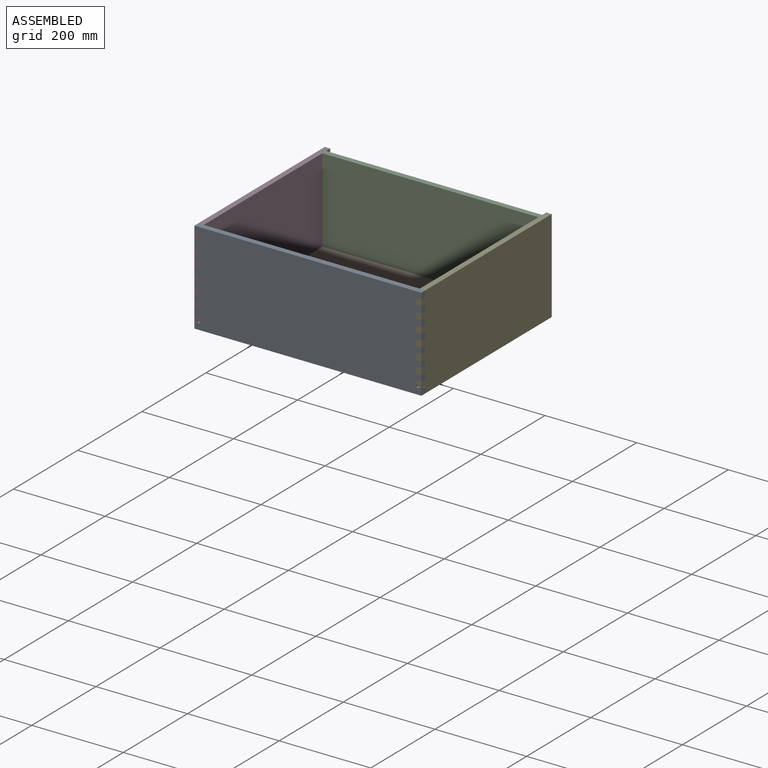
[diagram: assembled view]
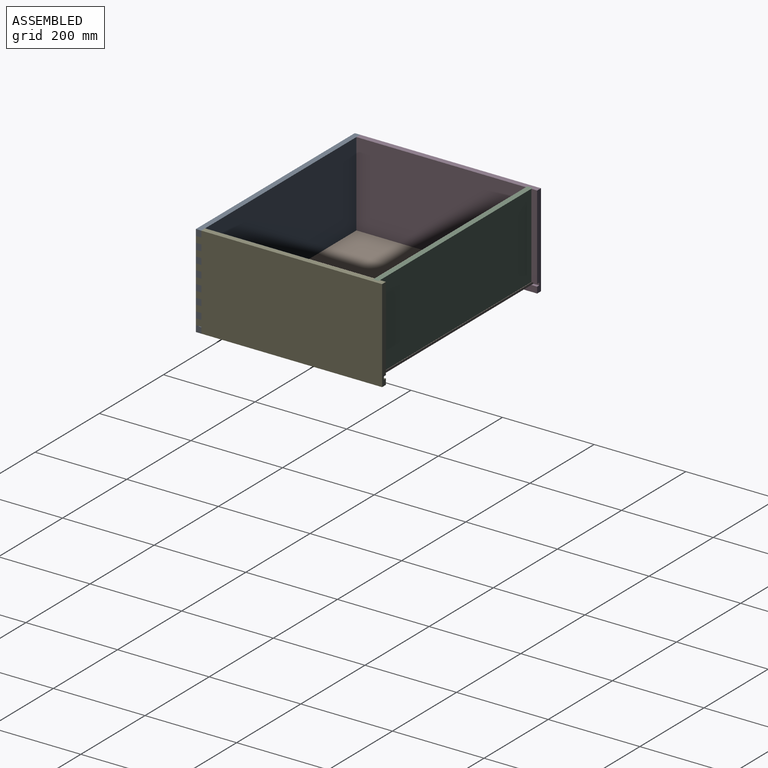
[diagram: assembled view, second angle]
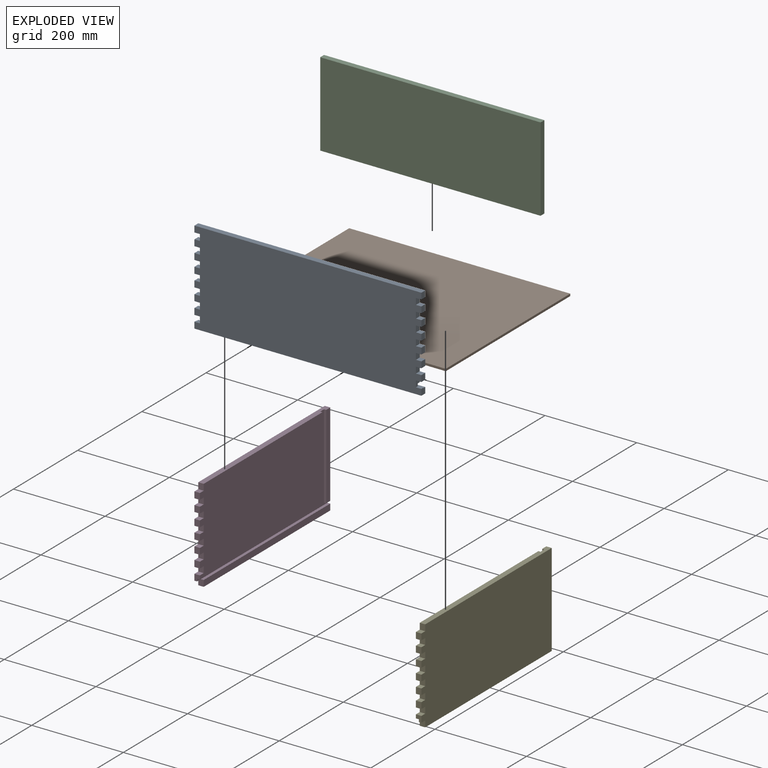
[diagram: exploded view]
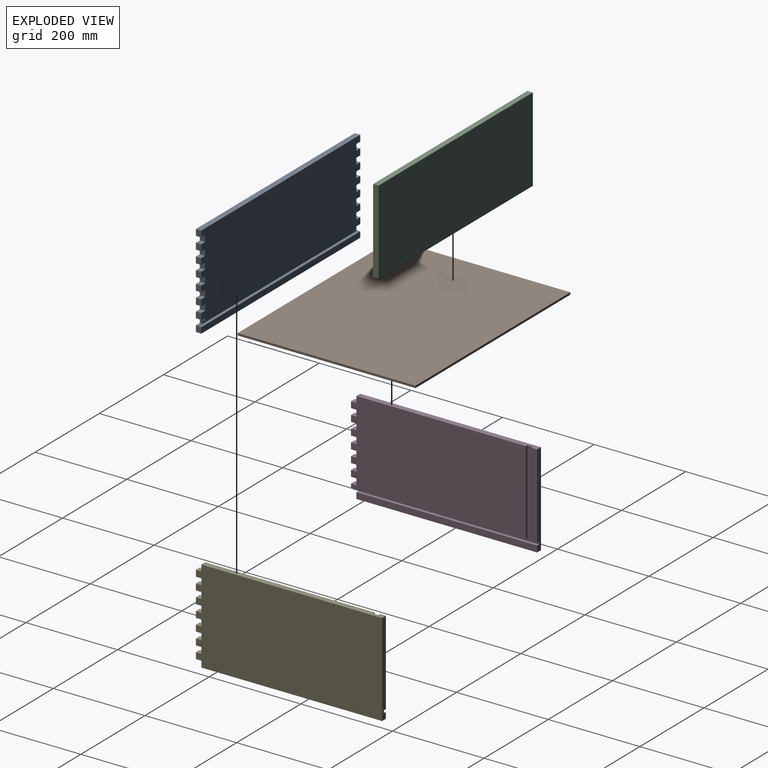
[diagram: exploded view, second angle]
ASSEMBLY  parts=5 mates=12
PART A: 66 faces, bbox 495.3x11.9x203.2 mm
  f0: plane 13.55x11.91mm, normal (1,0,0), area 155.9mm2, adj f3,f10,f21,f22,f63,f65
  f1: plane 495.3x184.15mm, normal (0,1,0), area 89082.5mm2, adj f4,f5,f6,f7,f8,f9,f11,f12
  f2: plane 11.91x5.56mm, normal (0,0,1), area 66.2mm2, adj f17,f22,f24,f65
  f3: plane 11.91x5.56mm, normal (0,0,1), area 66.2mm2, adj f0,f22,f44,f65
  f4: plane 13.55x11.91mm, normal (1,0,0), area 161.3mm2, adj f1,f22,f57,f61
  f5: plane 13.55x11.91mm, normal (1,0,0), area 161.3mm2, adj f1,f22,f54,f58
  f6: plane 13.55x11.91mm, normal (1,0,0), area 161.3mm2, adj f1,f22,f51,f55
  f7: plane 13.55x11.91mm, normal (1,0,0), area 161.3mm2, adj f1,f22,f48,f52
  f8: plane 13.55x11.91mm, normal (1,0,0), area 161.3mm2, adj f1,f22,f45,f49
  f9: plane 13.55x11.91mm, normal (1,0,0), area 161.3mm2, adj f1,f22,f43,f46
  f10: plane 495.3x12.7mm, normal (0,1,0), area 6290.3mm2, adj f0,f17,f21,f63
  f11: plane 13.55x11.91mm, normal (-1,0,0), area 161.3mm2, adj f1,f22,f37,f41
  f12: plane 13.55x11.91mm, normal (-1,0,0), area 161.3mm2, adj f1,f22,f34,f38
  f13: plane 13.55x11.91mm, normal (-1,0,0), area 161.3mm2, adj f1,f22,f31,f35
  f14: plane 13.55x11.91mm, normal (-1,0,0), area 161.3mm2, adj f1,f22,f28,f32
  f15: plane 13.55x11.91mm, normal (-1,0,0), area 161.3mm2, adj f1,f22,f25,f29
  f16: plane 13.55x11.91mm, normal (-1,0,0), area 161.3mm2, adj f1,f22,f23,f26
  f17: plane 13.55x11.91mm, normal (-1,0,0), area 155.9mm2, adj f2,f10,f21,f22,f63,f65
  f18: plane 13.55x11.91mm, normal (-1,0,0), area 161.3mm2, adj f1,f19,f22,f40
  f19: plane 495.3x11.91mm, normal (0,0,1), area 5897.2mm2, adj f1,f18,f20,f22
  f20: plane 13.55x11.91mm, normal (1,0,0), area 161.3mm2, adj f1,f19,f22,f60
  f21: plane 495.3x11.91mm, normal (0,0,-1), area 5897.2mm2, adj f0,f10,f17,f22
  f22: plane 495.3x203.2mm, normal (0,-1,0), area 98386.9mm2, adj f0,f2,f3,f4,f5,f6,f7,f8
  f23: plane 11.91x11.91mm, normal (0,0,-1), area 141.8mm2, adj f1,f16,f22,f24
  f24: plane 13.55x11.91mm, normal (-1,0,0), area 126.3mm2, adj f1,f2,f22,f23,f64,f65
  f25: plane 11.91x11.91mm, normal (0,0,-1), area 141.8mm2, adj f1,f15,f22,f27
  f26: plane 11.91x11.91mm, normal (0,0,1), area 141.8mm2, adj f1,f16,f22,f27
  f27: plane 13.55x11.91mm, normal (-1,0,0), area 161.3mm2, adj f1,f22,f25,f26
  f28: plane 11.91x11.91mm, normal (0,0,-1), area 141.8mm2, adj f1,f14,f22,f30
  f29: plane 11.91x11.91mm, normal (0,0,1), area 141.8mm2, adj f1,f15,f22,f30
  f30: plane 13.55x11.91mm, normal (-1,0,0), area 161.3mm2, adj f1,f22,f28,f29
  f31: plane 11.91x11.91mm, normal (0,0,-1), area 141.8mm2, adj f1,f13,f22,f33
  f32: plane 11.91x11.91mm, normal (0,0,1), area 141.8mm2, adj f1,f14,f22,f33
  f33: plane 13.55x11.91mm, normal (-1,0,0), area 161.3mm2, adj f1,f22,f31,f32
  f34: plane 11.91x11.91mm, normal (0,0,-1), area 141.8mm2, adj f1,f12,f22,f36
  f35: plane 11.91x11.91mm, normal (0,0,1), area 141.8mm2, adj f1,f13,f22,f36
  f36: plane 13.55x11.91mm, normal (-1,0,0), area 161.3mm2, adj f1,f22,f34,f35
  f37: plane 11.91x11.91mm, normal (0,0,-1), area 141.8mm2, adj f1,f11,f22,f39
  f38: plane 11.91x11.91mm, normal (0,0,1), area 141.8mm2, adj f1,f12,f22,f39
  f39: plane 13.55x11.91mm, normal (-1,0,0), area 161.3mm2, adj f1,f22,f37,f38
  f40: plane 11.91x11.91mm, normal (0,0,-1), area 141.8mm2, adj f1,f18,f22,f42
  f41: plane 11.91x11.91mm, normal (0,0,1), area 141.8mm2, adj f1,f11,f22,f42
  f42: plane 13.55x11.91mm, normal (-1,0,0), area 161.3mm2, adj f1,f22,f40,f41
  f43: plane 11.91x11.91mm, normal (0,0,-1), area 141.8mm2, adj f1,f9,f22,f44
  f44: plane 13.55x11.91mm, normal (1,0,0), area 126.3mm2, adj f1,f3,f22,f43,f64,f65
  f45: plane 11.91x11.91mm, normal (0,0,-1), area 141.8mm2, adj f1,f8,f22,f47
  f46: plane 11.91x11.91mm, normal (0,0,1), area 141.8mm2, adj f1,f9,f22,f47
  f47: plane 13.55x11.91mm, normal (1,0,0), area 161.3mm2, adj f1,f22,f45,f46
  f48: plane 11.91x11.91mm, normal (0,0,-1), area 141.8mm2, adj f1,f7,f22,f50
  f49: plane 11.91x11.91mm, normal (0,0,1), area 141.8mm2, adj f1,f8,f22,f50
  f50: plane 13.55x11.91mm, normal (1,0,0), area 161.3mm2, adj f1,f22,f48,f49
  f51: plane 11.91x11.91mm, normal (0,0,-1), area 141.8mm2, adj f1,f6,f22,f53
  f52: plane 11.91x11.91mm, normal (0,0,1), area 141.8mm2, adj f1,f7,f22,f53
  f53: plane 13.55x11.91mm, normal (1,0,0), area 161.3mm2, adj f1,f22,f51,f52
  f54: plane 11.91x11.91mm, normal (0,0,-1), area 141.8mm2, adj f1,f5,f22,f56
  f55: plane 11.91x11.91mm, normal (0,0,1), area 141.8mm2, adj f1,f6,f22,f56
  f56: plane 13.55x11.91mm, normal (1,0,0), area 161.3mm2, adj f1,f22,f54,f55
  f57: plane 11.91x11.91mm, normal (0,0,-1), area 141.8mm2, adj f1,f4,f22,f59
  f58: plane 11.91x11.91mm, normal (0,0,1), area 141.8mm2, adj f1,f5,f22,f59
  f59: plane 13.55x11.91mm, normal (1,0,0), area 161.3mm2, adj f1,f22,f57,f58
  f60: plane 11.91x11.91mm, normal (0,0,-1), area 141.8mm2, adj f1,f20,f22,f62
  f61: plane 11.91x11.91mm, normal (0,0,1), area 141.8mm2, adj f1,f4,f22,f62
  f62: plane 13.55x11.91mm, normal (1,0,0), area 161.3mm2, adj f1,f22,f60,f61
  f63: plane 495.3x6.35mm, normal (0,0,1), area 3145.2mm2, adj f0,f10,f17,f65
  f64: plane 471.49x6.35mm, normal (0,0,-1), area 2993.9mm2, adj f1,f24,f44,f65
  f65: plane 495.3x6.35mm, normal (0,1,0), area 3014.1mm2, adj f0,f2,f3,f17,f24,f44,f63,f64
PART B: 6 faces, bbox 482.6x388.1x4.8 mm
  f0: plane 482.6x4.76mm, normal (0,-1,0), area 2298.4mm2, adj f1,f3,f4,f5
  f1: plane 388.14x4.76mm, normal (-1,0,0), area 1848.5mm2, adj f0,f2,f3,f4
  f2: plane 482.6x4.76mm, normal (0,1,0), area 2298.4mm2, adj f1,f3,f4,f5
  f3: plane 482.6x388.14mm, normal (0,0,-1), area 187318.2mm2, adj f0,f1,f2,f5
  f4: plane 482.6x388.14mm, normal (0,0,1), area 187318.2mm2, adj f0,f1,f2,f5
  f5: plane 388.14x4.76mm, normal (1,0,0), area 1848.5mm2, adj f0,f2,f3,f4
PART C: 6 faces, bbox 481x11.9x184.2 mm
  f0: plane 481.01x11.91mm, normal (0,0,-1), area 5727.1mm2, adj f1,f2,f3,f4
  f1: plane 481.01x184.15mm, normal (0,1,0), area 88578.5mm2, adj f0,f2,f4,f5
  f2: plane 184.15x11.91mm, normal (-1,0,0), area 2192.5mm2, adj f0,f1,f3,f5
  f3: plane 481.01x184.15mm, normal (0,-1,0), area 88578.5mm2, adj f0,f2,f4,f5
  f4: plane 184.15x11.91mm, normal (1,0,0), area 2192.5mm2, adj f0,f1,f3,f5
  f5: plane 481.01x11.91mm, normal (0,0,1), area 5727.1mm2, adj f1,f2,f3,f4
PART D: 42 faces, bbox 11.9x406.4x203.2 mm
  f0: plane 381.79x184.15mm, normal (1,0,0), area 69178.3mm2, adj f1,f2,f5,f6,f7,f8,f9,f10
  f1: plane 394.49x11.91mm, normal (0,0,1), area 4640.2mm2, adj f0,f3,f4,f13,f35,f39,f40,f41
  f2: plane 406.4x6.35mm, normal (0,0,-1), area 2523.9mm2, adj f0,f3,f4,f11,f38,f39,f40,f41
  f3: plane 184.15x12.7mm, normal (1,0,0), area 2338.7mm2, adj f1,f2,f4,f39
  f4: plane 203.2x11.91mm, normal (0,1,0), area 2384.4mm2, adj f1,f2,f3,f12,f13,f14,f37,f38
  f5: plane 13.55x11.91mm, normal (0,-1,0), area 161.3mm2, adj f0,f13,f34,f36
  f6: plane 13.55x11.91mm, normal (0,-1,0), area 161.3mm2, adj f0,f13,f31,f33
  f7: plane 13.55x11.91mm, normal (0,-1,0), area 161.3mm2, adj f0,f13,f28,f30
  f8: plane 13.55x11.91mm, normal (0,-1,0), area 161.3mm2, adj f0,f13,f25,f27
  f9: plane 13.55x11.91mm, normal (0,-1,0), area 161.3mm2, adj f0,f13,f22,f24
  f10: plane 13.55x11.91mm, normal (0,-1,0), area 161.3mm2, adj f0,f13,f19,f21
  f11: plane 13.55x11.91mm, normal (0,-1,0), area 126.3mm2, adj f0,f2,f13,f16,f18,f38
  f12: plane 394.49x11.91mm, normal (0,0,-1), area 4696.9mm2, adj f4,f13,f14,f15
  f13: plane 406.4x203.2mm, normal (-1,0,0), area 81290.2mm2, adj f1,f4,f5,f6,f7,f8,f9,f10
  f14: plane 394.49x13.55mm, normal (1,0,0), area 5344.1mm2, adj f4,f12,f15,f37
  f15: plane 13.55x11.91mm, normal (0,-1,0), area 161.3mm2, adj f12,f13,f14,f16,f37
  f16: plane 11.91x5.56mm, normal (0,0,-1), area 66.2mm2, adj f11,f13,f15,f38
  f17: plane 13.55x11.91mm, normal (0,-1,0), area 161.3mm2, adj f0,f13,f18,f19
  f18: plane 11.91x11.91mm, normal (0,0,1), area 141.8mm2, adj f0,f11,f13,f17
  f19: plane 11.91x11.91mm, normal (0,0,-1), area 141.8mm2, adj f0,f10,f13,f17
  f20: plane 13.55x11.91mm, normal (0,-1,0), area 161.3mm2, adj f0,f13,f21,f22
  f21: plane 11.91x11.91mm, normal (0,0,1), area 141.8mm2, adj f0,f10,f13,f20
  f22: plane 11.91x11.91mm, normal (0,0,-1), area 141.8mm2, adj f0,f9,f13,f20
  f23: plane 13.55x11.91mm, normal (0,-1,0), area 161.3mm2, adj f0,f13,f24,f25
  f24: plane 11.91x11.91mm, normal (0,0,1), area 141.8mm2, adj f0,f9,f13,f23
  f25: plane 11.91x11.91mm, normal (0,0,-1), area 141.8mm2, adj f0,f8,f13,f23
  f26: plane 13.55x11.91mm, normal (0,-1,0), area 161.3mm2, adj f0,f13,f27,f28
  f27: plane 11.91x11.91mm, normal (0,0,1), area 141.8mm2, adj f0,f8,f13,f26
  f28: plane 11.91x11.91mm, normal (0,0,-1), area 141.8mm2, adj f0,f7,f13,f26
  f29: plane 13.55x11.91mm, normal (0,-1,0), area 161.3mm2, adj f0,f13,f30,f31
  f30: plane 11.91x11.91mm, normal (0,0,1), area 141.8mm2, adj f0,f7,f13,f29
  f31: plane 11.91x11.91mm, normal (0,0,-1), area 141.8mm2, adj f0,f6,f13,f29
  f32: plane 13.55x11.91mm, normal (0,-1,0), area 161.3mm2, adj f0,f13,f33,f34
  f33: plane 11.91x11.91mm, normal (0,0,1), area 141.8mm2, adj f0,f6,f13,f32
  f34: plane 11.91x11.91mm, normal (0,0,-1), area 141.8mm2, adj f0,f5,f13,f32
  f35: plane 13.55x11.91mm, normal (0,-1,0), area 161.3mm2, adj f0,f1,f13,f36
  f36: plane 11.91x11.91mm, normal (0,0,1), area 141.8mm2, adj f0,f5,f13,f35
  f37: plane 394.49x6.35mm, normal (0,0,1), area 2505mm2, adj f4,f14,f15,f38
  f38: plane 406.4x5.5mm, normal (1,0,0), area 2236.6mm2, adj f2,f4,f11,f16,f37
  f39: plane 184.15x4.76mm, normal (0,-1,0), area 877mm2, adj f1,f2,f3,f41
  f40: plane 184.15x4.76mm, normal (0,1,0), area 877mm2, adj f0,f1,f2,f41
  f41: plane 184.15x11.91mm, normal (1,0,0), area 2192.5mm2, adj f1,f2,f39,f40
PART E: 42 faces, bbox 11.9x406.4x203.2 mm
  f0: plane 381.79x184.15mm, normal (-1,0,0), area 69178.3mm2, adj f1,f2,f6,f7,f8,f9,f10,f11
  f1: plane 394.49x11.91mm, normal (0,0,1), area 4640.2mm2, adj f0,f4,f13,f15,f35,f39,f40,f41
  f2: plane 406.4x6.35mm, normal (0,0,-1), area 2523.9mm2, adj f0,f4,f7,f15,f38,f39,f40,f41
  f3: plane 394.49x12.7mm, normal (-1,0,0), area 5010.1mm2, adj f4,f14,f34,f37
  f4: plane 203.2x11.91mm, normal (0,1,0), area 2379mm2, adj f1,f2,f3,f13,f14,f15,f37,f38
  f5: plane 11.91x5.56mm, normal (0,0,-1), area 66.2mm2, adj f7,f13,f34,f38
  f6: plane 13.55x11.91mm, normal (0,-1,0), area 161.3mm2, adj f0,f13,f17,f36
  f7: plane 13.55x11.91mm, normal (0,-1,0), area 126.3mm2, adj f0,f2,f5,f13,f33,f38
  f8: plane 13.55x11.91mm, normal (0,-1,0), area 161.3mm2, adj f0,f13,f30,f32
  f9: plane 13.55x11.91mm, normal (0,-1,0), area 161.3mm2, adj f0,f13,f27,f29
  f10: plane 13.55x11.91mm, normal (0,-1,0), area 161.3mm2, adj f0,f13,f24,f26
  f11: plane 13.55x11.91mm, normal (0,-1,0), area 161.3mm2, adj f0,f13,f21,f23
  f12: plane 13.55x11.91mm, normal (0,-1,0), area 161.3mm2, adj f0,f13,f18,f20
  f13: plane 406.4x203.2mm, normal (1,0,0), area 81290.2mm2, adj f1,f4,f5,f6,f7,f8,f9,f10
  f14: plane 394.49x11.91mm, normal (0,0,-1), area 4696.9mm2, adj f3,f4,f13,f34
  f15: plane 184.15x12.7mm, normal (-1,0,0), area 2338.7mm2, adj f1,f2,f4,f39
  f16: plane 13.55x11.91mm, normal (0,-1,0), area 161.3mm2, adj f0,f13,f17,f18
  f17: plane 11.91x11.91mm, normal (0,0,-1), area 141.8mm2, adj f0,f6,f13,f16
  f18: plane 11.91x11.91mm, normal (0,0,1), area 141.8mm2, adj f0,f12,f13,f16
  f19: plane 13.55x11.91mm, normal (0,-1,0), area 161.3mm2, adj f0,f13,f20,f21
  f20: plane 11.91x11.91mm, normal (0,0,-1), area 141.8mm2, adj f0,f12,f13,f19
  f21: plane 11.91x11.91mm, normal (0,0,1), area 141.8mm2, adj f0,f11,f13,f19
  f22: plane 13.55x11.91mm, normal (0,-1,0), area 161.3mm2, adj f0,f13,f23,f24
  f23: plane 11.91x11.91mm, normal (0,0,-1), area 141.8mm2, adj f0,f11,f13,f22
  f24: plane 11.91x11.91mm, normal (0,0,1), area 141.8mm2, adj f0,f10,f13,f22
  f25: plane 13.55x11.91mm, normal (0,-1,0), area 161.3mm2, adj f0,f13,f26,f27
  f26: plane 11.91x11.91mm, normal (0,0,-1), area 141.8mm2, adj f0,f10,f13,f25
  f27: plane 11.91x11.91mm, normal (0,0,1), area 141.8mm2, adj f0,f9,f13,f25
  f28: plane 13.55x11.91mm, normal (0,-1,0), area 161.3mm2, adj f0,f13,f29,f30
  f29: plane 11.91x11.91mm, normal (0,0,-1), area 141.8mm2, adj f0,f9,f13,f28
  f30: plane 11.91x11.91mm, normal (0,0,1), area 141.8mm2, adj f0,f8,f13,f28
  f31: plane 13.55x11.91mm, normal (0,-1,0), area 161.3mm2, adj f0,f13,f32,f33
  f32: plane 11.91x11.91mm, normal (0,0,-1), area 141.8mm2, adj f0,f8,f13,f31
  f33: plane 11.91x11.91mm, normal (0,0,1), area 141.8mm2, adj f0,f7,f13,f31
  f34: plane 13.55x11.91mm, normal (0,-1,0), area 155.9mm2, adj f3,f5,f13,f14,f37,f38
  f35: plane 13.55x11.91mm, normal (0,-1,0), area 161.3mm2, adj f0,f1,f13,f36
  f36: plane 11.91x11.91mm, normal (0,0,1), area 141.8mm2, adj f0,f6,f13,f35
  f37: plane 394.49x6.35mm, normal (0,0,1), area 2505mm2, adj f3,f4,f34,f38
  f38: plane 406.4x6.35mm, normal (-1,0,0), area 2570.6mm2, adj f2,f4,f5,f7,f34,f37
  f39: plane 184.15x4.76mm, normal (0,-1,0), area 877mm2, adj f1,f2,f15,f41
  f40: plane 184.15x4.76mm, normal (0,1,0), area 877mm2, adj f0,f1,f2,f41
  f41: plane 184.15x11.91mm, normal (-1,0,0), area 2192.5mm2, adj f1,f2,f39,f40
PLACE A t=(-466.7,-252.36,-335.69)mm fixed
PLACE B t=(-467.5,-252.36,-335.84)mm
PLACE C t=(-466.7,-252.36,-335.69)mm
PLACE D t=(-466.7,-252.36,-335.69)mm
PLACE E t=(-466.7,-252.36,-335.69)mm
MATE planar C.f5 <-> E.f1  axis (0,0,1) through (-53.95,154.44,-81.69)mm
MATE planar E.f1 <-> A.f19  axis (0,0,1) through (193.7,-221.4,-81.69)mm
MATE planar E.f39 <-> C.f1  axis (0,-1,0) through (184.17,160.39,-173.76)mm
MATE planar D.f1 <-> A.f19  axis (0,0,1) through (-295.65,-221.4,-81.69)mm
MATE planar D.f13 <-> A.f12  axis (-1,0,0) through (-301.6,-26.98,-183.29)mm
MATE planar D.f7 <-> A.f22  axis (0,-1,0) through (-295.65,-233.31,-156.19)mm
MATE planar B.f1 <-> D.f38  axis (-1,0,0) through (-296.05,-33.68,-268.96)mm
MATE planar B.f3 <-> D.f37  axis (0,0,-1) through (-54.75,-33.68,-271.34)mm
MATE planar E.f41 <-> C.f4  axis (-1,0,0) through (186.55,154.44,-173.76)mm
MATE planar E.f13 <-> A.f6  axis (1,0,0) through (193.7,-26.98,-183.29)mm
MATE planar A.f22 <-> E.f11  axis (0,-1,0) through (-53.95,-233.31,-183.29)mm
MATE planar B.f0 <-> A.f65  axis (0,-1,0) through (-54.75,-227.75,-268.96)mm
